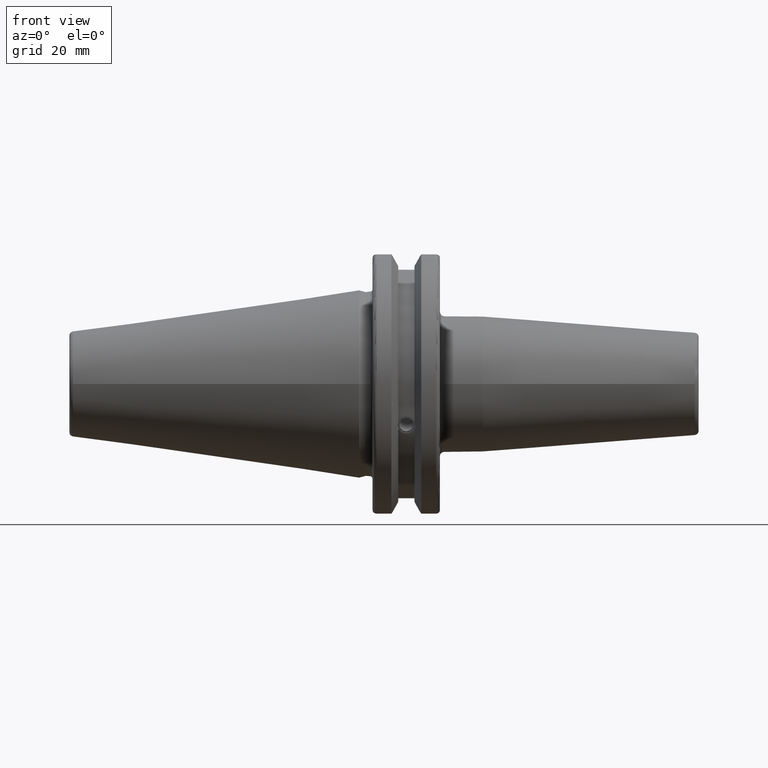
[diagram: clean part render]
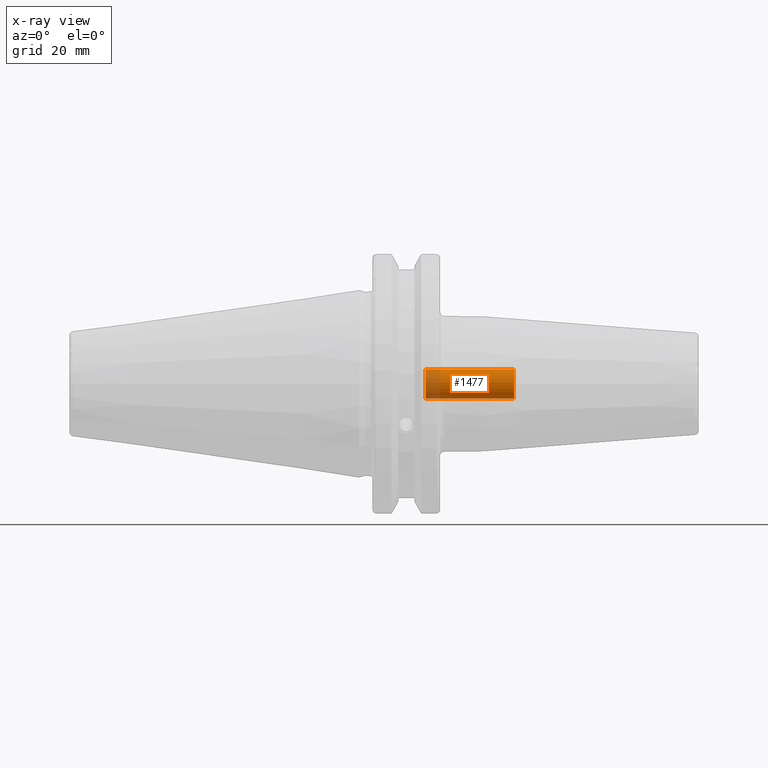
[diagram: x-ray — body ghosted, one internal face saturated and labeled with its STEP entity id]
A machine part, front view, then the same camera in x-ray: the body is ghosted and one INTERNAL B-rep face — a face not visible from any outside direction — is saturated and labeled: STEP entity #1477.
In plain terms, the highlighted cylindrical surface (bore or boss wall) has radius 3.4585 mm, axis along (1, 0, 0).
Its self-contained STEP definition (entity closure, byte-faithful):
#81=CYLINDRICAL_SURFACE('',#1602,3.4585);
#120=LINE('',#2271,#212);
#212=VECTOR('',#1823,3.4585);
#364=FACE_OUTER_BOUND('',#452,.T.);
#452=EDGE_LOOP('',(#1045,#1046,#1047,#1048,#1049));
#560=CIRCLE('',#1603,3.4585);
#561=CIRCLE('',#1604,3.4585);
#562=CIRCLE('',#1605,3.4585);
#641=VERTEX_POINT('',#2268);
#642=VERTEX_POINT('',#2270);
#643=VERTEX_POINT('',#2272);
#799=EDGE_CURVE('',#641,#641,#560,.T.);
#800=EDGE_CURVE('',#641,#642,#120,.T.);
#801=EDGE_CURVE('',#643,#642,#561,.T.);
#802=EDGE_CURVE('',#642,#643,#562,.T.);
#1045=ORIENTED_EDGE('',*,*,#799,.F.);
#1046=ORIENTED_EDGE('',*,*,#800,.T.);
#1047=ORIENTED_EDGE('',*,*,#801,.F.);
#1048=ORIENTED_EDGE('',*,*,#802,.F.);
#1049=ORIENTED_EDGE('',*,*,#800,.F.);
#1477=ADVANCED_FACE('',(#364),#81,.F.);
#1602=AXIS2_PLACEMENT_3D('',#2267,#1819,#1820);
#1603=AXIS2_PLACEMENT_3D('',#2269,#1821,#1822);
#1604=AXIS2_PLACEMENT_3D('',#2273,#1824,#1825);
#1605=AXIS2_PLACEMENT_3D('',#2274,#1826,#1827);
#1819=DIRECTION('center_axis',(1.,0.,0.));
#1820=DIRECTION('ref_axis',(0.,0.,-1.));
#1821=DIRECTION('center_axis',(-1.,0.,0.));
#1822=DIRECTION('ref_axis',(0.,0.,-1.));
#1823=DIRECTION('',(-1.,0.,0.));
#1824=DIRECTION('center_axis',(1.,0.,0.));
#1825=DIRECTION('ref_axis',(0.,0.,-1.));
#1826=DIRECTION('center_axis',(1.,0.,0.));
#1827=DIRECTION('ref_axis',(0.,0.,-1.));
#2267=CARTESIAN_POINT('Origin',(-135.959652382535,0.,0.));
#2268=CARTESIAN_POINT('',(36.5,-4.23544095485112E-16,3.4585));
#2269=CARTESIAN_POINT('Origin',(36.5,0.,0.));
#2270=CARTESIAN_POINT('',(15.6934235861827,-4.23544095485112E-16,3.4585));
#2271=CARTESIAN_POINT('',(-135.959652382535,-4.23544095485112E-16,3.4585));
#2272=CARTESIAN_POINT('',(15.6934235861827,-4.23544095485113E-16,-3.45850000000001));
#2273=CARTESIAN_POINT('Origin',(15.6934235861827,0.,0.));
#2274=CARTESIAN_POINT('Origin',(15.6934235861827,0.,0.));